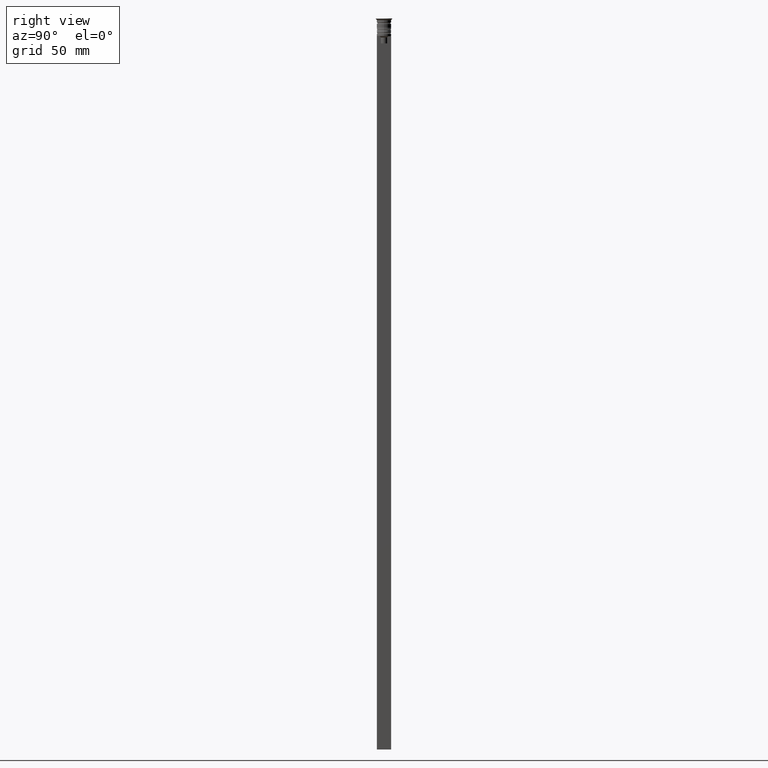
[diagram: clean part render]
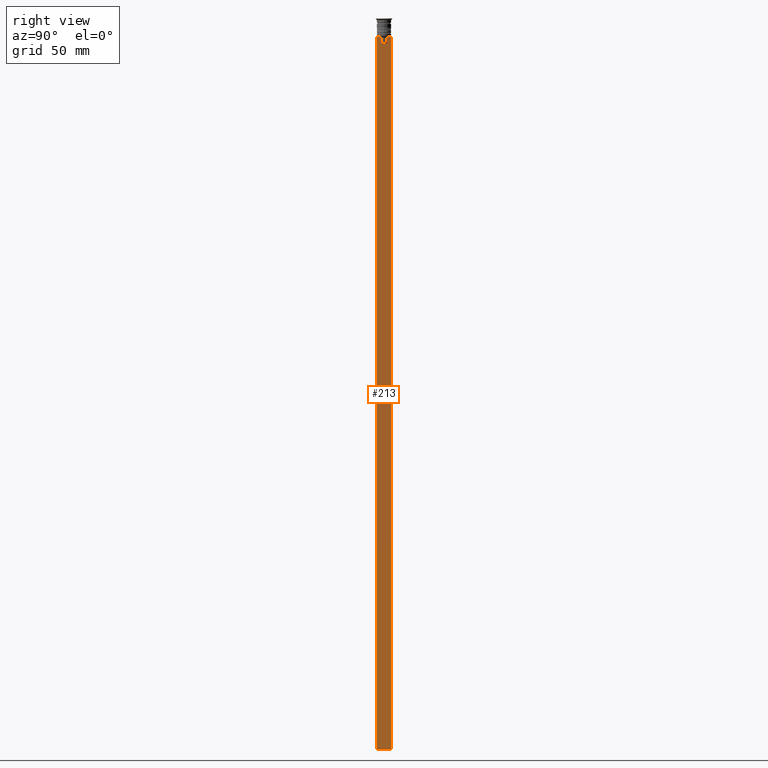
[diagram: same view with one face highlighted and labeled with its STEP entity id]
A machine part, right view. The second image highlights one B-rep face of the part: STEP entity #213.
In plain terms, the highlighted planar face has unit normal (-1, 0, 0).
Its self-contained STEP definition (entity closure, byte-faithful):
#14 = DIRECTION ( 'NONE',  ( 0.000000000000000000, -1.000000000000000000, 0.000000000000000000 ) ) ;
#50 = CARTESIAN_POINT ( 'NONE',  ( 0.4999999999999998890, -1.833030277982335754, -7.500000000000000000 ) ) ;
#53 = LINE ( 'NONE', #1313, #1953 ) ;
#99 = CARTESIAN_POINT ( 'NONE',  ( 0.4999999999999998890, -1.659011726860414093, -7.667884880598472286 ) ) ;
#121 = CARTESIAN_POINT ( 'NONE',  ( 0.4999999999999998890, 2.856571371417139904, -7.500000000000000000 ) ) ;
#178 = ORIENTED_EDGE ( 'NONE', *, *, #2144, .T. ) ;
#179 = FACE_OUTER_BOUND ( 'NONE', #870, .T. ) ;
#187 = CARTESIAN_POINT ( 'NONE',  ( 0.4999999999999998890, 1.659046061654642967, -7.667851756010362507 ) ) ;
#192 = CARTESIAN_POINT ( 'NONE',  ( 0.4999999999999998890, -1.307669683062199439, -8.000000000000000000 ) ) ;
#197 = ORIENTED_EDGE ( 'NONE', *, *, #1103, .T. ) ;
#213 = ADVANCED_FACE ( 'NONE', ( #179 ), #1416, .F. ) ;
#239 = LINE ( 'NONE', #639, #555 ) ;
#246 = LINE ( 'NONE', #2243, #2174 ) ;
#250 = B_SPLINE_CURVE_WITH_KNOTS ( 'NONE', 3,
 ( #743, #187, #573, #1294 ),
 .UNSPECIFIED., .F., .F.,
 ( 4, 4 ),
 ( 0.003278537493109848298, 0.004003794023484941178 ),
 .UNSPECIFIED. ) ;
#262 = CARTESIAN_POINT ( 'NONE',  ( 0.4999999999999998890, -3.000000000000000000, -7.500000000000000000 ) ) ;
#279 = EDGE_CURVE ( 'NONE', #1276, #1139, #887, .T. ) ;
#307 = VERTEX_POINT ( 'NONE', #1683 ) ;
#401 = VECTOR ( 'NONE', #14, 1000.000000000000000 ) ;
#407 = EDGE_CURVE ( 'NONE', #953, #2317, #239, .T. ) ;
#409 = LINE ( 'NONE', #1477, #1908 ) ;
#467 = LINE ( 'NONE', #1662, #1078 ) ;
#472 = CARTESIAN_POINT ( 'NONE',  ( 0.4999999999999998890, -2.856571371417139904, -7.500000000000000000 ) ) ;
#510 = CARTESIAN_POINT ( 'NONE',  ( 0.4999999999999998890, -3.000000000000000000, -1.417237469701779329 ) ) ;
#511 = EDGE_CURVE ( 'NONE', #1386, #960, #2221, .T. ) ;
#528 = VECTOR ( 'NONE', #1472, 1000.000000000000000 ) ;
#555 = VECTOR ( 'NONE', #1886, 1000.000000000000000 ) ;
#573 = CARTESIAN_POINT ( 'NONE',  ( 0.4999999999999998890, 1.484355510416485835, -7.834966642958598015 ) ) ;
#604 = CARTESIAN_POINT ( 'NONE',  ( 0.4999999999999998890, 1.307669683062199439, 0.000000000000000000 ) ) ;
#609 = ORIENTED_EDGE ( 'NONE', *, *, #407, .T. ) ;
#617 = LINE ( 'NONE', #1029, #1756 ) ;
#639 = CARTESIAN_POINT ( 'NONE',  ( 0.4999999999999998890, -3.000000000000000000, -7.500000000000000000 ) ) ;
#668 = VECTOR ( 'NONE', #980, 1000.000000000000000 ) ;
#681 = EDGE_CURVE ( 'NONE', #960, #307, #467, .T. ) ;
#690 = ORIENTED_EDGE ( 'NONE', *, *, #279, .T. ) ;
#691 = ORIENTED_EDGE ( 'NONE', *, *, #1738, .T. ) ;
#734 = EDGE_CURVE ( 'NONE', #1357, #953, #1278, .T. ) ;
#743 = CARTESIAN_POINT ( 'NONE',  ( 0.4999999999999998890, 1.833030277982335754, -7.500000000000000000 ) ) ;
#763 = CARTESIAN_POINT ( 'NONE',  ( 0.4999999999999998890, -3.000000000000000000, -7.500000000000000000 ) ) ;
#806 = EDGE_CURVE ( 'NONE', #307, #1438, #409, .T. ) ;
#857 = EDGE_CURVE ( 'NONE', #1357, #1438, #617, .T. ) ;
#870 = EDGE_LOOP ( 'NONE', ( #609, #197, #691, #178, #1208, #690, #1695, #2077, #1030, #1714, #1846, #1471 ) ) ;
#877 = LINE ( 'NONE', #2105, #1982 ) ;
#887 = B_SPLINE_CURVE_WITH_KNOTS ( 'NONE', 3,
 ( #192, #907, #99, #1735 ),
 .UNSPECIFIED., .F., .F.,
 ( 4, 4 ),
 ( 0.007225659348748082224, 0.007950554640278054835 ),
 .UNSPECIFIED. ) ;
#907 = CARTESIAN_POINT ( 'NONE',  ( 0.4999999999999998890, -1.484307477388859153, -7.835011508197190722 ) ) ;
#953 = VERTEX_POINT ( 'NONE', #121 ) ;
#960 = VERTEX_POINT ( 'NONE', #1504 ) ;
#978 = DIRECTION ( 'NONE',  ( 0.000000000000000000, -1.000000000000000000, 0.000000000000000000 ) ) ;
#980 = DIRECTION ( 'NONE',  ( 0.000000000000000000, -1.000000000000000000, 0.000000000000000000 ) ) ;
#1026 = CARTESIAN_POINT ( 'NONE',  ( 0.4999999999999998890, 3.000000000000000000, -307.5000000000000000 ) ) ;
#1029 = CARTESIAN_POINT ( 'NONE',  ( 0.4999999999999998890, 3.000000000000000000, -1.417237469701779329 ) ) ;
#1030 = ORIENTED_EDGE ( 'NONE', *, *, #681, .T. ) ;
#1065 = EDGE_CURVE ( 'NONE', #1227, #1276, #877, .T. ) ;
#1078 = VECTOR ( 'NONE', #1114, 1000.000000000000000 ) ;
#1103 = EDGE_CURVE ( 'NONE', #2317, #2127, #250, .T. ) ;
#1114 = DIRECTION ( 'NONE',  ( 0.000000000000000000, 0.000000000000000000, -1.000000000000000000 ) ) ;
#1139 = VERTEX_POINT ( 'NONE', #50 ) ;
#1188 = CARTESIAN_POINT ( 'NONE',  ( 0.4999999999999998890, 3.000000000000000000, -7.500000000000000000 ) ) ;
#1196 = AXIS2_PLACEMENT_3D ( 'NONE', #510, #1387, #1965 ) ;
#1208 = ORIENTED_EDGE ( 'NONE', *, *, #1065, .T. ) ;
#1227 = VERTEX_POINT ( 'NONE', #1308 ) ;
#1276 = VERTEX_POINT ( 'NONE', #1515 ) ;
#1278 = LINE ( 'NONE', #763, #401 ) ;
#1294 = CARTESIAN_POINT ( 'NONE',  ( 0.4999999999999998890, 1.307669683062199439, -8.000000000000000000 ) ) ;
#1308 = CARTESIAN_POINT ( 'NONE',  ( 0.4999999999999998890, -1.307669683062199439, -10.49999999999999822 ) ) ;
#1313 = CARTESIAN_POINT ( 'NONE',  ( 0.4999999999999998890, -3.000000000000000000, -7.500000000000000000 ) ) ;
#1357 = VERTEX_POINT ( 'NONE', #1188 ) ;
#1386 = VERTEX_POINT ( 'NONE', #472 ) ;
#1387 = DIRECTION ( 'NONE',  ( -1.000000000000000000, 0.000000000000000000, 0.000000000000000000 ) ) ;
#1416 = PLANE ( 'NONE',  #1196 ) ;
#1427 = VERTEX_POINT ( 'NONE', #1577 ) ;
#1438 = VERTEX_POINT ( 'NONE', #1026 ) ;
#1471 = ORIENTED_EDGE ( 'NONE', *, *, #734, .T. ) ;
#1472 = DIRECTION ( 'NONE',  ( 0.000000000000000000, 0.000000000000000000, -1.000000000000000000 ) ) ;
#1477 = CARTESIAN_POINT ( 'NONE',  ( 0.4999999999999998890, -3.000000000000000000, -307.5000000000000000 ) ) ;
#1504 = CARTESIAN_POINT ( 'NONE',  ( 0.4999999999999998890, -3.000000000000000000, -7.500000000000000000 ) ) ;
#1515 = CARTESIAN_POINT ( 'NONE',  ( 0.4999999999999998890, -1.307669683062199439, -8.000000000000000000 ) ) ;
#1577 = CARTESIAN_POINT ( 'NONE',  ( 0.4999999999999998890, 1.307669683062199439, -10.49999999999999822 ) ) ;
#1662 = CARTESIAN_POINT ( 'NONE',  ( 0.4999999999999998890, -3.000000000000000000, -1.417237469701779329 ) ) ;
#1665 = DIRECTION ( 'NONE',  ( 0.000000000000000000, -1.000000000000000000, 0.000000000000000000 ) ) ;
#1683 = CARTESIAN_POINT ( 'NONE',  ( 0.4999999999999998890, -3.000000000000000000, -307.5000000000000000 ) ) ;
#1695 = ORIENTED_EDGE ( 'NONE', *, *, #2138, .T. ) ;
#1714 = ORIENTED_EDGE ( 'NONE', *, *, #806, .T. ) ;
#1735 = CARTESIAN_POINT ( 'NONE',  ( 0.4999999999999998890, -1.833030277982335754, -7.500000000000000000 ) ) ;
#1738 = EDGE_CURVE ( 'NONE', #2127, #1427, #2250, .T. ) ;
#1756 = VECTOR ( 'NONE', #2267, 1000.000000000000000 ) ;
#1817 = DIRECTION ( 'NONE',  ( 0.000000000000000000, 1.000000000000000000, 0.000000000000000000 ) ) ;
#1846 = ORIENTED_EDGE ( 'NONE', *, *, #857, .F. ) ;
#1869 = CARTESIAN_POINT ( 'NONE',  ( 0.4999999999999998890, 1.307669683062199439, -8.000000000000000000 ) ) ;
#1886 = DIRECTION ( 'NONE',  ( 0.000000000000000000, -1.000000000000000000, 0.000000000000000000 ) ) ;
#1908 = VECTOR ( 'NONE', #1817, 1000.000000000000000 ) ;
#1953 = VECTOR ( 'NONE', #1665, 1000.000000000000000 ) ;
#1965 = DIRECTION ( 'NONE',  ( 0.000000000000000000, 0.000000000000000000, 1.000000000000000000 ) ) ;
#1982 = VECTOR ( 'NONE', #2137, 1000.000000000000000 ) ;
#2077 = ORIENTED_EDGE ( 'NONE', *, *, #511, .T. ) ;
#2105 = CARTESIAN_POINT ( 'NONE',  ( 0.4999999999999998890, -1.307669683062199439, 0.000000000000000000 ) ) ;
#2127 = VERTEX_POINT ( 'NONE', #1869 ) ;
#2137 = DIRECTION ( 'NONE',  ( -0.000000000000000000, -0.000000000000000000, 1.000000000000000000 ) ) ;
#2138 = EDGE_CURVE ( 'NONE', #1139, #1386, #53, .T. ) ;
#2144 = EDGE_CURVE ( 'NONE', #1427, #1227, #246, .T. ) ;
#2156 = CARTESIAN_POINT ( 'NONE',  ( 0.4999999999999998890, 1.833030277982335754, -7.500000000000000000 ) ) ;
#2174 = VECTOR ( 'NONE', #978, 1000.000000000000000 ) ;
#2221 = LINE ( 'NONE', #262, #668 ) ;
#2243 = CARTESIAN_POINT ( 'NONE',  ( 0.4999999999999998890, 1.399999999999997691, -10.49999999999999822 ) ) ;
#2250 = LINE ( 'NONE', #604, #528 ) ;
#2267 = DIRECTION ( 'NONE',  ( 0.000000000000000000, 0.000000000000000000, -1.000000000000000000 ) ) ;
#2317 = VERTEX_POINT ( 'NONE', #2156 ) ;